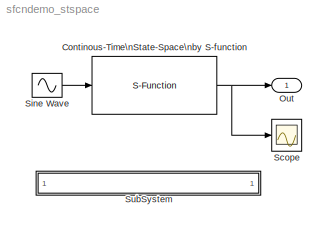
MODEL sfcndemo_stspace
KIND model
BLOCK [S-Function] Continous-Time\nState-Space\nby S-function
  FunctionName = stspace
  MaskCallbackString = ||||
  MaskDescription = This is a S-function block which is the state-space system with dynamic inputs, outputs and states.
  MaskDisplay = disp('dx/dt = A*X + B*U\\n Y      = C*X + D*U ');
  MaskEnableString = on,on,on,on,on
  MaskIconFrame = on
  MaskIconOpaque = on
  MaskIconRotate = none
  MaskIconUnits = autoscale
  MaskPromptString = A|B|C|D|Initial condition:
  MaskStyleString = edit,edit,edit,edit,edit
  MaskTabNameString = ,,,,
  MaskToolTipString = on,on,on,on,on
  MaskTunableValueString = on,on,on,on,on
  MaskType = S-function: stspace
  MaskValueString = [-0.09 -0.01; 1 0]|[1 -7; 0 -2]|[0 2; 1 -5]| [-3 0; 1 0]|[]
  MaskVarAliasString = ,,,,
  MaskVariables = a=@1;b=@2;c=@3;d=@4;x0=@5;
  MaskVisibilityString = on,on,on,on,on
  Parameters = a,b,c,d,x0
  Ports = [1, 1]
BLOCK [Outport] Out
  IconDisplay = Port number
  InitialOutput = 0
BLOCK [Scope] Scope
  DataFormat = StructureWithTime
  NumInputPorts = 1
  Ports = [1]
  TimeRange = 10
  YMax = 500
  YMin = -200
BLOCK [Sin] Sine Wave
  Amplitude = [1 2]
  Ports = [0, 1]
  SampleTime = 0
BLOCK [SubSystem] SubSystem
  MaskDisplay = disp('matlabroot<path>');
  MaskIconFrame = on
  MaskIconOpaque = on
  MaskIconRotate = none
  MaskIconUnits = autoscale
  MinAlgLoopOccurrences = off
  OpenFcn = edit(fullfile(matlabroot,'simulink','src','stspace.c'))
  Ports = []
  PropExecContextAcrossSSBoundary = on
  RTWSystemCode = Auto
  TreatAsAtomicUnit = off
NET Continous-Time\nState-Space\nby S-function:1 -> Out:1, Scope:1
LINE Sine Wave:1 -> Continous-Time\nState-Space\nby S-function:1
note: NET lines group one-source signal fan-out (src -> all destinations, sorted); 1:1 wires keep LINE
note: 1 file-system path scrubbed to <path> (not preserved elsewhere — flat text is the only slx artifact)
